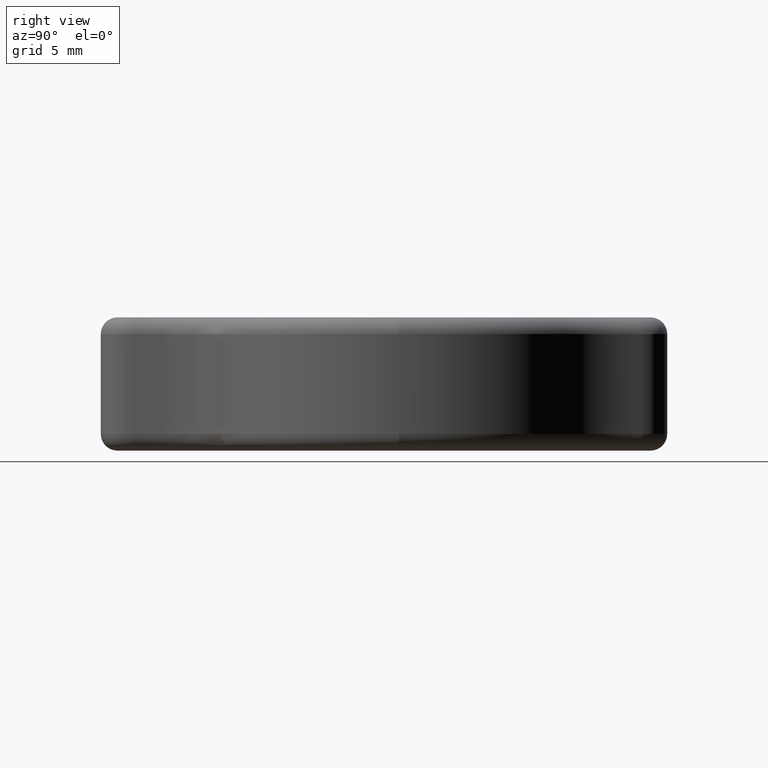
[diagram: clean part render]
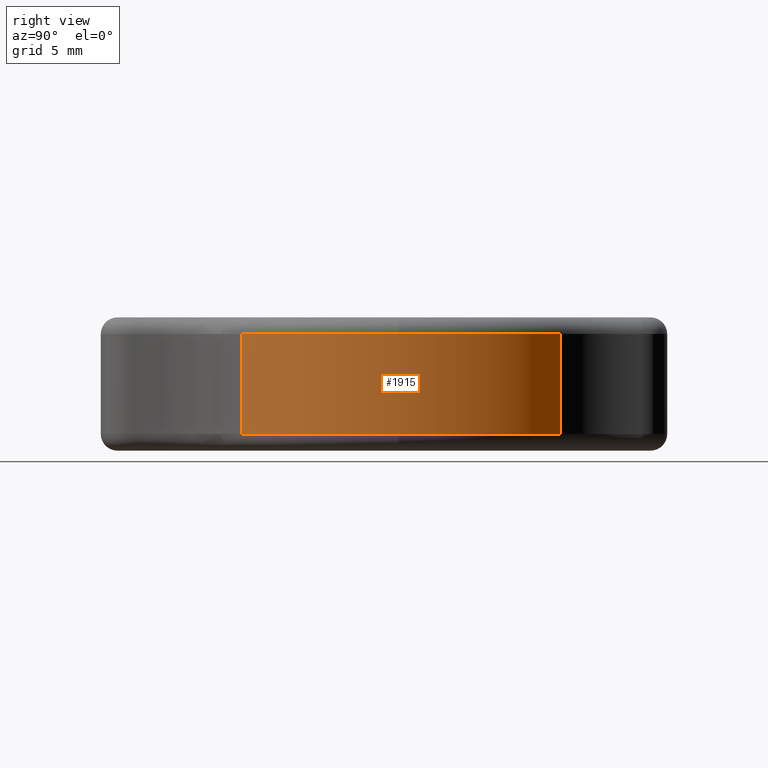
[diagram: same view with one face highlighted and labeled with its STEP entity id]
A machine part, right view. The second image highlights one B-rep face of the part: STEP entity #1915.
In plain terms, the highlighted cylindrical surface (partial cylindrical patch) has radius 13.3 mm, axis along (-0, -0, -1).
Its self-contained STEP definition (entity closure, byte-faithful):
#1 = VERTEX_POINT ( 'NONE', #924 ) ;
#13 = CARTESIAN_POINT ( 'NONE',  ( 2.223772548633339100, 1.633371797953784300, 38.00000000000000700 ) ) ;
#35 = VERTEX_POINT ( 'NONE', #1844 ) ;
#68 = AXIS2_PLACEMENT_3D ( 'NONE', #221, #918, #399 ) ;
#90 = CARTESIAN_POINT ( 'NONE',  ( 11.58945416092057800, -7.809827232950136800, 37.00000000000000700 ) ) ;
#135 = VERTEX_POINT ( 'NONE', #2183 ) ;
#179 = LINE ( 'NONE', #1000, #1494 ) ;
#208 = EDGE_CURVE ( 'NONE', #1, #35, #1121, .T. ) ;
#212 = DIRECTION ( 'NONE',  ( -0.0000000000000000000, -0.0000000000000000000, -1.000000000000000000 ) ) ;
#221 = CARTESIAN_POINT ( 'NONE',  ( 2.223772548633339100, 1.633371797953784300, 37.00000000000000700 ) ) ;
#322 = EDGE_CURVE ( 'NONE', #1620, #1992, #1933, .T. ) ;
#376 = ORIENTED_EDGE ( 'NONE', *, *, #2160, .T. ) ;
#399 = DIRECTION ( 'NONE',  ( 1.000000000000000000, 0.0000000000000000000, 0.0000000000000000000 ) ) ;
#408 = AXIS2_PLACEMENT_3D ( 'NONE', #618, #985, #1312 ) ;
#477 = DIRECTION ( 'NONE',  ( 1.000000000000000000, 0.0000000000000000000, 0.0000000000000000000 ) ) ;
#531 = CARTESIAN_POINT ( 'NONE',  ( 11.58945416092057800, -7.809827232950136800, 31.00000000000000400 ) ) ;
#577 = AXIS2_PLACEMENT_3D ( 'NONE', #1346, #1743, #477 ) ;
#618 = CARTESIAN_POINT ( 'NONE',  ( 2.223772548633339100, 1.633371797953784300, 37.00000000000000700 ) ) ;
#649 = ORIENTED_EDGE ( 'NONE', *, *, #1708, .F. ) ;
#660 = DIRECTION ( 'NONE',  ( -0.0000000000000000000, -0.0000000000000000000, -1.000000000000000000 ) ) ;
#731 = CARTESIAN_POINT ( 'NONE',  ( 15.52377254863334200, 1.633371797953784300, 37.00000000000000700 ) ) ;
#784 = CIRCLE ( 'NONE', #577, 13.30000000000000200 ) ;
#796 = ORIENTED_EDGE ( 'NONE', *, *, #208, .T. ) ;
#900 = CIRCLE ( 'NONE', #408, 13.30000000000000200 ) ;
#918 = DIRECTION ( 'NONE',  ( 0.0000000000000000000, -0.0000000000000000000, -1.000000000000000000 ) ) ;
#924 = CARTESIAN_POINT ( 'NONE',  ( 15.52377254863334200, 1.633371797953784300, 31.00000000000000400 ) ) ;
#979 = DIRECTION ( 'NONE',  ( 1.000000000000000000, 0.0000000000000000000, 0.0000000000000000000 ) ) ;
#985 = DIRECTION ( 'NONE',  ( 0.0000000000000000000, -0.0000000000000000000, -1.000000000000000000 ) ) ;
#1000 = CARTESIAN_POINT ( 'NONE',  ( 11.33498213486267000, 11.32232735961278400, 38.00000000000000700 ) ) ;
#1039 = CIRCLE ( 'NONE', #68, 13.30000000000000200 ) ;
#1055 = EDGE_CURVE ( 'NONE', #1367, #1620, #1039, .T. ) ;
#1103 = AXIS2_PLACEMENT_3D ( 'NONE', #2034, #1703, #979 ) ;
#1121 = CIRCLE ( 'NONE', #1103, 13.30000000000000200 ) ;
#1223 = FACE_OUTER_BOUND ( 'NONE', #1375, .T. ) ;
#1312 = DIRECTION ( 'NONE',  ( 1.000000000000000000, 0.0000000000000000000, 0.0000000000000000000 ) ) ;
#1346 = CARTESIAN_POINT ( 'NONE',  ( 2.223772548633339100, 1.633371797953784300, 31.00000000000000400 ) ) ;
#1361 = CARTESIAN_POINT ( 'NONE',  ( 11.58945416092057800, -7.809827232950136800, 38.00000000000000700 ) ) ;
#1367 = VERTEX_POINT ( 'NONE', #731 ) ;
#1375 = EDGE_LOOP ( 'NONE', ( #1893, #2084, #796, #649, #376, #1825 ) ) ;
#1494 = VECTOR ( 'NONE', #660, 1000.000000000000000 ) ;
#1527 = CYLINDRICAL_SURFACE ( 'NONE', #2079, 13.30000000000000200 ) ;
#1620 = VERTEX_POINT ( 'NONE', #90 ) ;
#1662 = VECTOR ( 'NONE', #1739, 1000.000000000000000 ) ;
#1703 = DIRECTION ( 'NONE',  ( -0.0000000000000000000, 0.0000000000000000000, 1.000000000000000000 ) ) ;
#1708 = EDGE_CURVE ( 'NONE', #135, #35, #179, .T. ) ;
#1739 = DIRECTION ( 'NONE',  ( -0.0000000000000000000, -0.0000000000000000000, -1.000000000000000000 ) ) ;
#1743 = DIRECTION ( 'NONE',  ( -0.0000000000000000000, 0.0000000000000000000, 1.000000000000000000 ) ) ;
#1825 = ORIENTED_EDGE ( 'NONE', *, *, #1055, .T. ) ;
#1844 = CARTESIAN_POINT ( 'NONE',  ( 11.33498213486267000, 11.32232735961278400, 31.00000000000000400 ) ) ;
#1893 = ORIENTED_EDGE ( 'NONE', *, *, #322, .T. ) ;
#1915 = ADVANCED_FACE ( 'NONE', ( #1223 ), #1527, .T. ) ;
#1933 = LINE ( 'NONE', #1361, #1662 ) ;
#1966 = DIRECTION ( 'NONE',  ( -1.000000000000000000, 0.0000000000000000000, 0.0000000000000000000 ) ) ;
#1992 = VERTEX_POINT ( 'NONE', #531 ) ;
#2034 = CARTESIAN_POINT ( 'NONE',  ( 2.223772548633339100, 1.633371797953784300, 31.00000000000000400 ) ) ;
#2079 = AXIS2_PLACEMENT_3D ( 'NONE', #13, #212, #1966 ) ;
#2084 = ORIENTED_EDGE ( 'NONE', *, *, #2281, .T. ) ;
#2160 = EDGE_CURVE ( 'NONE', #135, #1367, #900, .T. ) ;
#2183 = CARTESIAN_POINT ( 'NONE',  ( 11.33498213486267000, 11.32232735961278400, 37.00000000000000700 ) ) ;
#2281 = EDGE_CURVE ( 'NONE', #1992, #1, #784, .T. ) ;